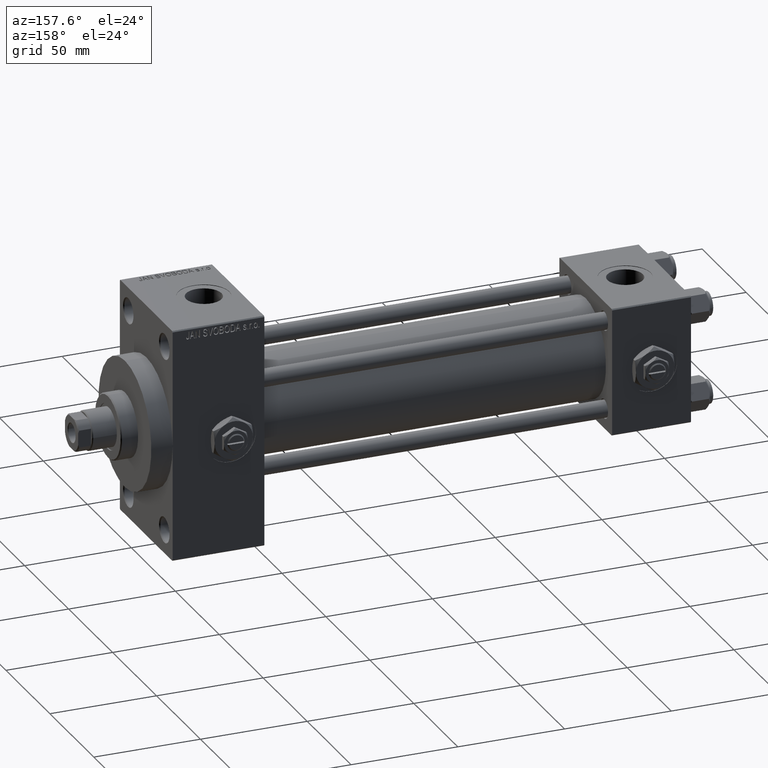
[diagram: clean part render]
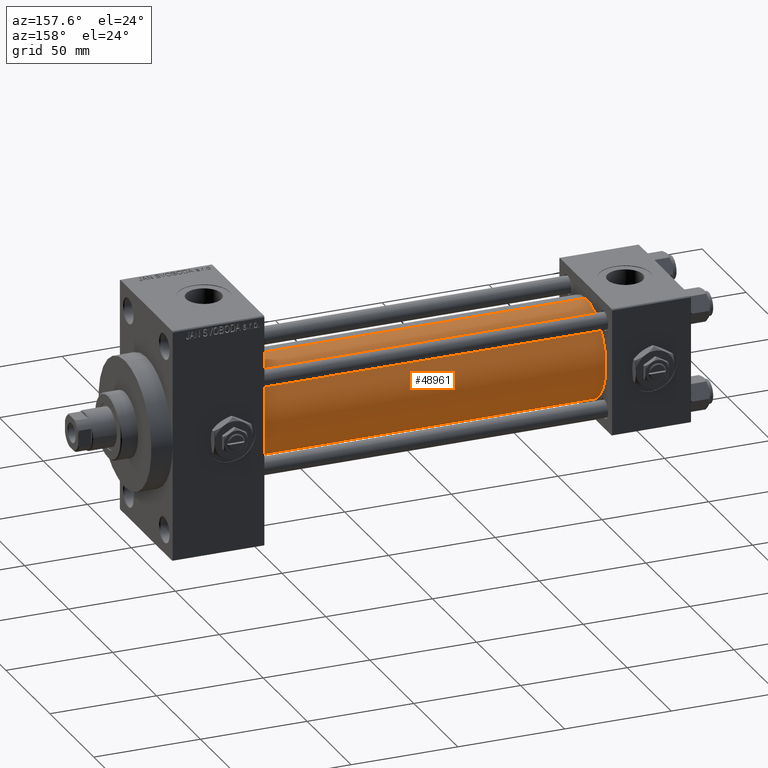
[diagram: same view with one face highlighted and labeled with its STEP entity id]
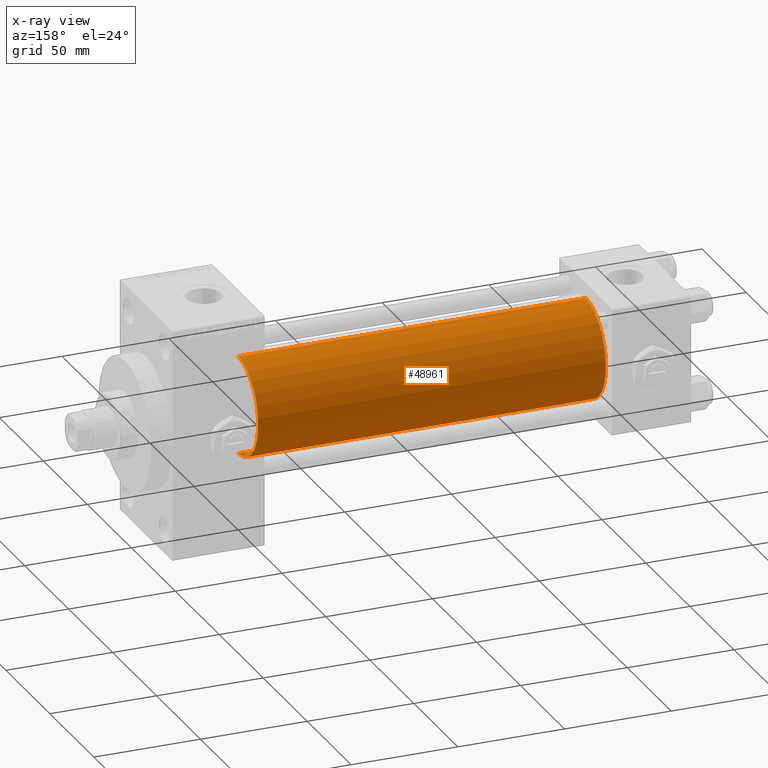
[diagram: x-ray of the same camera — body ghosted, the highlighted face saturated]
A machine part, auxiliary view. The second image highlights one B-rep face of the part: STEP entity #48961.
The next image is the same camera in x-ray: the body ghosted, the highlighted face saturated — about 0% of this face is hidden behind the body in this view.
In plain terms, the highlighted cylindrical surface (partial cylindrical patch) has radius 23 mm, axis along (-1, -0, -0).
Its self-contained STEP definition (entity closure, byte-faithful):
#485 = VERTEX_POINT ( 'NONE', #38443 ) ;
#2868 = AXIS2_PLACEMENT_3D ( 'NONE', #37141, #21422, #2986 ) ;
#2986 = DIRECTION ( 'NONE',  ( 0.000000000000000000, 0.000000000000000000, 1.000000000000000000 ) ) ;
#3119 = DIRECTION ( 'NONE',  ( 1.000000000000000000, 0.000000000000000000, 0.000000000000000000 ) ) ;
#5854 = DIRECTION ( 'NONE',  ( 0.000000000000000000, 0.000000000000000000, -1.000000000000000000 ) ) ;
#5882 = EDGE_CURVE ( 'NONE', #28885, #8340, #6065, .T. ) ;
#6065 = LINE ( 'NONE', #9073, #14517 ) ;
#8340 = VERTEX_POINT ( 'NONE', #36227 ) ;
#8417 = VERTEX_POINT ( 'NONE', #10578 ) ;
#8715 = CARTESIAN_POINT ( 'NONE',  ( 200.0000000000000000, -2.602085213965210642E-15, 0.000000000000000000 ) ) ;
#9073 = CARTESIAN_POINT ( 'NONE',  ( 200.0000000000000000, -2.602085213965210642E-15, 23.00000000000000000 ) ) ;
#10578 = CARTESIAN_POINT ( 'NONE',  ( 37.00000000000000711, 2.146024240737016609E-16, -23.00000000000000000 ) ) ;
#11342 = EDGE_LOOP ( 'NONE', ( #25796, #21153, #39648, #33152 ) ) ;
#14517 = VECTOR ( 'NONE', #42978, 1000.000000000000000 ) ;
#16796 = CARTESIAN_POINT ( 'NONE',  ( 200.0000000000000000, -2.602085213965210642E-15, 23.00000000000000000 ) ) ;
#18662 = CARTESIAN_POINT ( 'NONE',  ( 200.0000000000000000, 2.146024240737016609E-16, -23.00000000000000000 ) ) ;
#20409 = CYLINDRICAL_SURFACE ( 'NONE', #43625, 23.00000000000000000 ) ;
#21153 = ORIENTED_EDGE ( 'NONE', *, *, #34377, .T. ) ;
#21422 = DIRECTION ( 'NONE',  ( 1.000000000000000000, -0.000000000000000000, 0.000000000000000000 ) ) ;
#24156 = FACE_OUTER_BOUND ( 'NONE', #11342, .T. ) ;
#25796 = ORIENTED_EDGE ( 'NONE', *, *, #46654, .F. ) ;
#26880 = DIRECTION ( 'NONE',  ( -1.000000000000000000, -0.000000000000000000, -0.000000000000000000 ) ) ;
#27161 = DIRECTION ( 'NONE',  ( -1.000000000000000000, -0.000000000000000000, -0.000000000000000000 ) ) ;
#28885 = VERTEX_POINT ( 'NONE', #16796 ) ;
#33152 = ORIENTED_EDGE ( 'NONE', *, *, #5882, .F. ) ;
#33935 = CIRCLE ( 'NONE', #2868, 23.00000000000000000 ) ;
#34377 = EDGE_CURVE ( 'NONE', #485, #8417, #46075, .T. ) ;
#35372 = DIRECTION ( 'NONE',  ( 0.000000000000000000, 0.000000000000000000, 1.000000000000000000 ) ) ;
#36227 = CARTESIAN_POINT ( 'NONE',  ( 37.00000000000000711, -2.602085213965210642E-15, 23.00000000000000000 ) ) ;
#37141 = CARTESIAN_POINT ( 'NONE',  ( 37.00000000000000711, -2.602085213965210642E-15, 0.000000000000000000 ) ) ;
#38443 = CARTESIAN_POINT ( 'NONE',  ( 200.0000000000000000, 2.146024240737016609E-16, -23.00000000000000000 ) ) ;
#39648 = ORIENTED_EDGE ( 'NONE', *, *, #44109, .T. ) ;
#40255 = CARTESIAN_POINT ( 'NONE',  ( 200.0000000000000000, -2.602085213965210642E-15, 0.000000000000000000 ) ) ;
#42978 = DIRECTION ( 'NONE',  ( -1.000000000000000000, -0.000000000000000000, -0.000000000000000000 ) ) ;
#43625 = AXIS2_PLACEMENT_3D ( 'NONE', #8715, #27161, #35372 ) ;
#44109 = EDGE_CURVE ( 'NONE', #8417, #8340, #33935, .T. ) ;
#45922 = AXIS2_PLACEMENT_3D ( 'NONE', #40255, #3119, #5854 ) ;
#46075 = LINE ( 'NONE', #18662, #47817 ) ;
#46654 = EDGE_CURVE ( 'NONE', #485, #28885, #49125, .T. ) ;
#47817 = VECTOR ( 'NONE', #26880, 1000.000000000000000 ) ;
#48961 = ADVANCED_FACE ( 'NONE', ( #24156 ), #20409, .T. ) ;
#49125 = CIRCLE ( 'NONE', #45922, 23.00000000000000000 ) ;